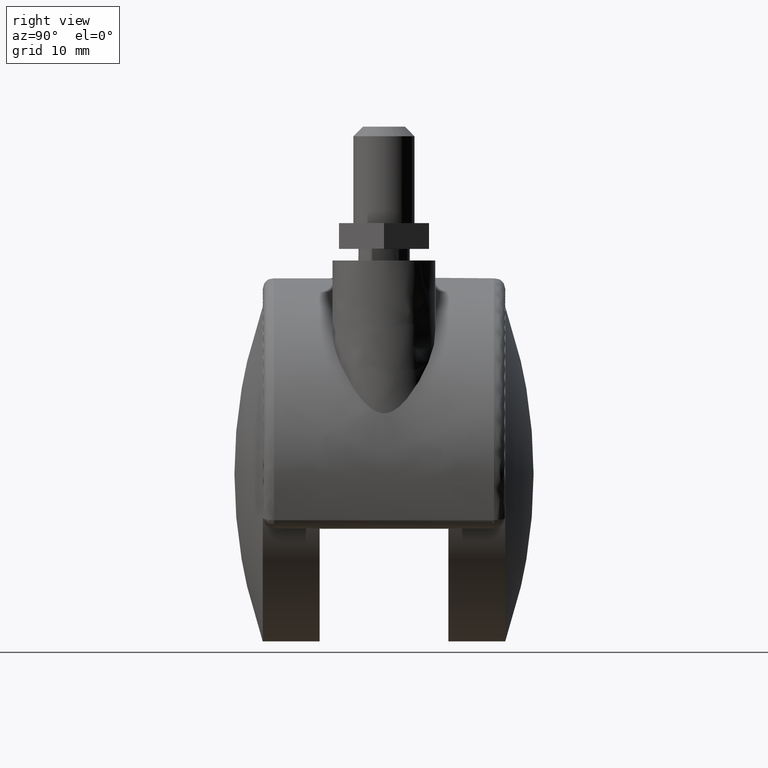
[diagram: clean part render]
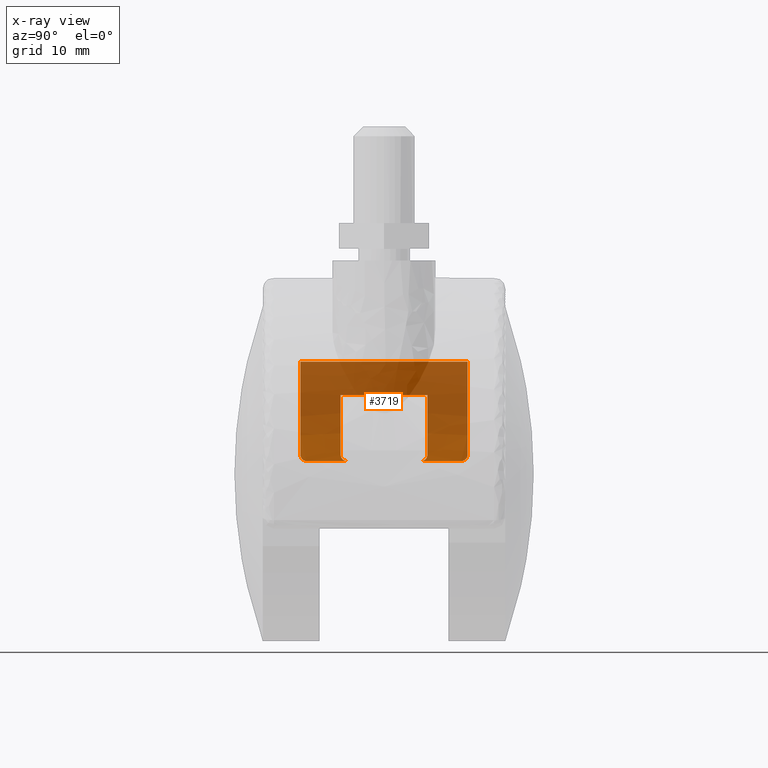
[diagram: x-ray — body ghosted, one internal face saturated and labeled with its STEP entity id]
A machine part, right view, then the same camera in x-ray: the body is ghosted and one INTERNAL B-rep face — a face not visible from any outside direction — is saturated and labeled: STEP entity #3719.
In plain terms, the highlighted face is a freeform B-spline surface patch.
Its self-contained STEP definition (entity closure, byte-faithful):
#3174=CARTESIAN_POINT('',(-18.894443627691199,-5.750000000000000,2.0));
#3175=VERTEX_POINT('',#3174);
#3181=CARTESIAN_POINT('',(-18.761663039293701,-6.750000000000000,3.0));
#3182=VERTEX_POINT('',#3181);
#3183=CARTESIAN_POINT('',(-18.761663039293701,-6.750000000000000,3.0));
#3184=CARTESIAN_POINT('',(-18.772136338605801,-6.750000000000002,2.934501162465546));
#3185=CARTESIAN_POINT('',(-18.782096038738811,-6.743626565541983,2.870015874243214));
#3186=CARTESIAN_POINT('',(-18.796322497222139,-6.724840603805475,2.774759676462990));
#3187=CARTESIAN_POINT('',(-18.800945463157159,-6.717029890141853,2.743254747255856));
#3188=CARTESIAN_POINT('',(-18.809959020361980,-6.698233365339325,2.680753358527176));
#3189=CARTESIAN_POINT('',(-18.814364442629969,-6.687186139035044,2.649645287974531));
#3190=CARTESIAN_POINT('',(-18.826974285729641,-6.649906527669389,2.559053999667226));
#3191=CARTESIAN_POINT('',(-18.834662939942682,-6.619448907145343,2.501694188412195));
#3192=CARTESIAN_POINT('',(-18.848777608183909,-6.547392918413935,2.393028322191455));
#3193=CARTESIAN_POINT('',(-18.855236073824489,-6.505338391770835,2.341420359804651));
#3194=CARTESIAN_POINT('',(-18.866507495339128,-6.413288647863860,2.248793371849185));
#3195=CARTESIAN_POINT('',(-18.871396859172890,-6.363029073026549,2.207203861786054));
#3196=CARTESIAN_POINT('',(-18.877735261573878,-6.281146204377138,2.152081195006593));
#3197=CARTESIAN_POINT('',(-18.879682838534499,-6.252683601060065,2.134905437988408));
#3198=CARTESIAN_POINT('',(-18.883176954277811,-6.194816740034788,2.103775992409507));
#3199=CARTESIAN_POINT('',(-18.886295042009259,-6.135720447052030,2.075653200648294));
#3200=CARTESIAN_POINT('',(-18.888712394857631,-6.074207286833745,2.053445260443463));
#3201=CARTESIAN_POINT('',(-18.890791298011361,-6.011471428285188,2.034231429376818));
#3202=CARTESIAN_POINT('',(-18.891663868494380,-5.979378023110510,2.026099523559267));
#3203=CARTESIAN_POINT('',(-18.893754899522719,-5.881986462887099,2.006538759888016));
#3204=CARTESIAN_POINT('',(-18.894443627691199,-5.816349673044193,2.0));
#3205=CARTESIAN_POINT('',(-18.894443627691199,-5.750000000000000,2.0));
#3206=B_SPLINE_CURVE_WITH_KNOTS('',3,(#3183,#3184,#3185,#3186,#3187,#3188,#3189,#3190,#3191,#3192,#3193,#3194,#3195,#3196,#3197,#3198,#3199,#3200,#3201,#3202,#3203,#3204,#3205),.UNSPECIFIED.,.F.,.U.,(4,2,2,2,2,2,2,2,1,2,2,4),(0.0,0.125000000000001,0.187500000000002,0.250000000000002,0.375000000000001,0.500000000000001,0.625000000000001,0.687500000000000,0.750000000000000,0.812499999999999,0.874999999999999,1.0),.UNSPECIFIED.);
#3207=EDGE_CURVE('',#3182,#3175,#3206,.T.);
#3261=CARTESIAN_POINT('',(-18.761663039293701,6.750000000000000,3.0));
#3262=VERTEX_POINT('',#3261);
#3268=CARTESIAN_POINT('',(-18.894443627691199,5.750000000000000,2.0));
#3269=VERTEX_POINT('',#3268);
#3270=CARTESIAN_POINT('',(-18.894443627691199,5.750000000000000,2.0));
#3271=CARTESIAN_POINT('',(-18.894443627691199,5.816340089798110,2.0));
#3272=CARTESIAN_POINT('',(-18.893755016630880,5.881560134999138,2.006536099276914));
#3273=CARTESIAN_POINT('',(-18.891702586896749,5.977779227215512,2.025738088890190));
#3274=CARTESIAN_POINT('',(-18.890846700358900,6.009581738512580,2.033716804918213));
#3275=CARTESIAN_POINT('',(-18.888771389098441,6.072633137494402,2.052902459797726));
#3276=CARTESIAN_POINT('',(-18.887546714464172,6.103944270127222,2.064156140006524));
#3277=CARTESIAN_POINT('',(-18.883379998415620,6.194975576713583,2.102047973050960));
#3278=CARTESIAN_POINT('',(-18.879932848899280,6.252514285096932,2.132952103104125));
#3279=CARTESIAN_POINT('',(-18.873642132730019,6.334139610276921,2.187685971274014));
#3280=CARTESIAN_POINT('',(-18.871345527367080,6.360676988030680,2.207433844952303));
#3281=CARTESIAN_POINT('',(-18.866390646821529,6.411566610929464,2.249388840250414));
#3282=CARTESIAN_POINT('',(-18.863749010214519,6.435776218268696,2.271456769980961));
#3283=CARTESIAN_POINT('',(-18.855309796693469,6.504814989394846,2.340825235629653));
#3284=CARTESIAN_POINT('',(-18.849003023049111,6.546087667040354,2.391260897304321));
#3285=CARTESIAN_POINT('',(-18.838349684066898,6.600702263039509,2.473326119073119));
#3286=CARTESIAN_POINT('',(-18.834611236002999,6.617590274520782,2.501652161592304));
#3287=CARTESIAN_POINT('',(-18.826873191060791,6.648215287438223,2.559236174464217));
#3288=CARTESIAN_POINT('',(-18.818839026218011,6.675875299145322,2.618023279598888));
#3289=CARTESIAN_POINT('',(-18.810183942900579,6.697697853473424,2.679173741165670));
#3290=CARTESIAN_POINT('',(-18.801198585906889,6.716565062033185,2.741518490617698));
#3291=CARTESIAN_POINT('',(-18.796518145788941,6.724545665215903,2.773437888537529));
#3292=CARTESIAN_POINT('',(-18.782149533327662,6.743627425185223,2.869680716371149));
#3293=CARTESIAN_POINT('',(-18.772135243103548,6.750000000000000,2.934508013613643));
#3294=CARTESIAN_POINT('',(-18.761663039293701,6.750000000000000,3.0));
#3295=B_SPLINE_CURVE_WITH_KNOTS('',3,(#3270,#3271,#3272,#3273,#3274,#3275,#3276,#3277,#3278,#3279,#3280,#3281,#3282,#3283,#3284,#3285,#3286,#3287,#3288,#3289,#3290,#3291,#3292,#3293,#3294),.UNSPECIFIED.,.F.,.U.,(4,2,2,2,2,2,2,2,2,1,2,2,4),(0.0,0.124999999999998,0.187499999999998,0.249999999999998,0.375000000000000,0.437500000000000,0.500000000000000,0.625000000000000,0.687500000000001,0.750000000000001,0.812500000000001,0.875000000000001,1.0),.UNSPECIFIED.);
#3296=EDGE_CURVE('',#3269,#3262,#3295,.T.);
#3320=CARTESIAN_POINT('',(-18.894443627691199,-12.0,2.0));
#3321=VERTEX_POINT('',#3320);
#3322=CARTESIAN_POINT('',(-18.761663039293701,-13.0,3.0));
#3323=VERTEX_POINT('',#3322);
#3324=CARTESIAN_POINT('',(-18.894443627691199,-12.0,2.0));
#3325=CARTESIAN_POINT('',(-18.894443627691199,-12.066340089798119,2.0));
#3326=CARTESIAN_POINT('',(-18.893755016630891,-12.131560134999139,2.006536099276914));
#3327=CARTESIAN_POINT('',(-18.891702586896749,-12.227779227215510,2.025738088890190));
#3328=CARTESIAN_POINT('',(-18.890846700358900,-12.259581738512580,2.033716804918212));
#3329=CARTESIAN_POINT('',(-18.888771389098441,-12.322633137494400,2.052902459797726));
#3330=CARTESIAN_POINT('',(-18.887546714464172,-12.353944270127220,2.064156140006525));
#3331=CARTESIAN_POINT('',(-18.883379998415631,-12.444975576713590,2.102047973050961));
#3332=CARTESIAN_POINT('',(-18.879932848899291,-12.502514285096931,2.132952103104124));
#3333=CARTESIAN_POINT('',(-18.873642132730019,-12.584139610276919,2.187685971274013));
#3334=CARTESIAN_POINT('',(-18.871345527367069,-12.610676988030679,2.207433844952306));
#3335=CARTESIAN_POINT('',(-18.866390646821529,-12.661566610929460,2.249388840250417));
#3336=CARTESIAN_POINT('',(-18.863749010214509,-12.685776218268691,2.271456769980962));
#3337=CARTESIAN_POINT('',(-18.855309796693469,-12.754814989394839,2.340825235629652));
#3338=CARTESIAN_POINT('',(-18.849003023049111,-12.796087667040361,2.391260897304321));
#3339=CARTESIAN_POINT('',(-18.838349684066909,-12.850702263039510,2.473326119073117));
#3340=CARTESIAN_POINT('',(-18.834611236002988,-12.867590274520790,2.501652161592307));
#3341=CARTESIAN_POINT('',(-18.826873191060791,-12.898215287438219,2.559236174464218));
#3342=CARTESIAN_POINT('',(-18.818839026218011,-12.925875299145320,2.618023279598888));
#3343=CARTESIAN_POINT('',(-18.810183942900569,-12.947697853473430,2.679173741165665));
#3344=CARTESIAN_POINT('',(-18.801198585906899,-12.966565062033190,2.741518490617692));
#3345=CARTESIAN_POINT('',(-18.796518145788941,-12.974545665215910,2.773437888537535));
#3346=CARTESIAN_POINT('',(-18.782149533327651,-12.993627425185220,2.869680716371151));
#3347=CARTESIAN_POINT('',(-18.772135243103541,-13.0,2.934508013613642));
#3348=CARTESIAN_POINT('',(-18.761663039293701,-13.0,3.0));
#3349=B_SPLINE_CURVE_WITH_KNOTS('',3,(#3324,#3325,#3326,#3327,#3328,#3329,#3330,#3331,#3332,#3333,#3334,#3335,#3336,#3337,#3338,#3339,#3340,#3341,#3342,#3343,#3344,#3345,#3346,#3347,#3348),.UNSPECIFIED.,.F.,.U.,(4,2,2,2,2,2,2,2,2,1,2,2,4),(0.0,0.125000000000002,0.187500000000002,0.250000000000001,0.375000000000003,0.437500000000004,0.500000000000005,0.625000000000004,0.687500000000003,0.750000000000003,0.812500000000002,0.875000000000002,1.0),.UNSPECIFIED.);
#3350=EDGE_CURVE('',#3321,#3323,#3349,.T.);
#3409=CARTESIAN_POINT('',(-18.761663039293701,13.0,3.0));
#3410=VERTEX_POINT('',#3409);
#3411=CARTESIAN_POINT('',(-18.894443627691199,12.0,2.0));
#3412=VERTEX_POINT('',#3411);
#3413=CARTESIAN_POINT('',(-18.761663039293701,13.0,3.0));
#3414=CARTESIAN_POINT('',(-18.772136338605801,13.0,2.934501162465546));
#3415=CARTESIAN_POINT('',(-18.782096038738811,12.993626565541989,2.870015874243215));
#3416=CARTESIAN_POINT('',(-18.796322497222128,12.974840603805470,2.774759676462991));
#3417=CARTESIAN_POINT('',(-18.800945463157159,12.967029890141850,2.743254747255855));
#3418=CARTESIAN_POINT('',(-18.809959020361969,12.948233365339330,2.680753358527177));
#3419=CARTESIAN_POINT('',(-18.814364442629969,12.937186139035051,2.649645287974530));
#3420=CARTESIAN_POINT('',(-18.826974285729630,12.899906527669390,2.559053999667225));
#3421=CARTESIAN_POINT('',(-18.834662939942682,12.869448907145340,2.501694188412195));
#3422=CARTESIAN_POINT('',(-18.848777608183902,12.797392918413941,2.393028322191453));
#3423=CARTESIAN_POINT('',(-18.855236073824489,12.755338391770840,2.341420359804652));
#3424=CARTESIAN_POINT('',(-18.866507495339128,12.663288647863860,2.248793371849185));
#3425=CARTESIAN_POINT('',(-18.871396859172879,12.613029073026549,2.207203861786054));
#3426=CARTESIAN_POINT('',(-18.877735261573889,12.531146204377141,2.152081195006593));
#3427=CARTESIAN_POINT('',(-18.879682838534510,12.502683601060070,2.134905437988408));
#3428=CARTESIAN_POINT('',(-18.883176954277801,12.444816740034790,2.103775992409506));
#3429=CARTESIAN_POINT('',(-18.886295042009259,12.385720447052030,2.075653200648296));
#3430=CARTESIAN_POINT('',(-18.888712394857642,12.324207286833740,2.053445260443463));
#3431=CARTESIAN_POINT('',(-18.890791298011351,12.261471428285191,2.034231429376817));
#3432=CARTESIAN_POINT('',(-18.891663868494369,12.229378023110510,2.026099523559268));
#3433=CARTESIAN_POINT('',(-18.893754899522719,12.131986462887101,2.006538759888016));
#3434=CARTESIAN_POINT('',(-18.894443627691199,12.066349673044190,2.0));
#3435=CARTESIAN_POINT('',(-18.894443627691199,12.0,2.0));
#3436=B_SPLINE_CURVE_WITH_KNOTS('',3,(#3413,#3414,#3415,#3416,#3417,#3418,#3419,#3420,#3421,#3422,#3423,#3424,#3425,#3426,#3427,#3428,#3429,#3430,#3431,#3432,#3433,#3434,#3435),.UNSPECIFIED.,.F.,.U.,(4,2,2,2,2,2,2,2,1,2,2,4),(0.0,0.125000000000002,0.187500000000003,0.250000000000003,0.375000000000003,0.500000000000002,0.625000000000002,0.687500000000002,0.750000000000001,0.812500000000001,0.875000000000001,1.0),.UNSPECIFIED.);
#3437=EDGE_CURVE('',#3410,#3412,#3436,.T.);
#3489=CARTESIAN_POINT('',(-7.500000000000000,-13.0,17.457090250096101));
#3490=VERTEX_POINT('',#3489);
#3491=CARTESIAN_POINT('',(-7.499999999999990,-13.0,17.457090250096091));
#3492=CARTESIAN_POINT('',(-17.110157927626016,-12.999999999999996,13.328327470926844));
#3493=CARTESIAN_POINT('',(-18.761663039293719,-13.0,3.000000000000006));
#3501=(BOUNDED_CURVE()B_SPLINE_CURVE(2,(#3491,#3492,#3493),.UNSPECIFIED.,.F.,.U.)CURVE()GEOMETRIC_REPRESENTATION_ITEM()QUASI_UNIFORM_CURVE()RATIONAL_B_SPLINE_CURVE((1.0,0.876030255002670,1.0))REPRESENTATION_ITEM(''));
#3502=EDGE_CURVE('',#3490,#3323,#3501,.T.);
#3549=CARTESIAN_POINT('',(-7.500000000000000,13.0,17.457090250096101));
#3550=VERTEX_POINT('',#3549);
#3551=CARTESIAN_POINT('',(-7.499999999999990,13.0,17.457090250096091));
#3552=CARTESIAN_POINT('',(-17.110157927626016,12.999999999999996,13.328327470926844));
#3553=CARTESIAN_POINT('',(-18.761663039293719,13.0,3.000000000000006));
#3561=(BOUNDED_CURVE()B_SPLINE_CURVE(2,(#3551,#3552,#3553),.UNSPECIFIED.,.F.,.U.)CURVE()GEOMETRIC_REPRESENTATION_ITEM()QUASI_UNIFORM_CURVE()RATIONAL_B_SPLINE_CURVE((1.0,0.876030255002670,1.0))REPRESENTATION_ITEM(''));
#3562=EDGE_CURVE('',#3550,#3410,#3561,.T.);
#3584=CARTESIAN_POINT('',(-7.500000000000000,-6.900000000000000,17.457090250096101));
#3585=VERTEX_POINT('',#3584);
#3591=CARTESIAN_POINT('',(-7.500000000000000,-6.900000000000000,17.457090250096101));
#3592=CARTESIAN_POINT('',(-7.500000000000000,-13.0,17.457090250096101));
#3593=QUASI_UNIFORM_CURVE('',1,(#3591,#3592),.UNSPECIFIED.,.F.,.U.);
#3594=EDGE_CURVE('',#3585,#3490,#3593,.T.);
#3639=CARTESIAN_POINT('',(-18.947742766867890,13.650000000000000,1.408205965264028));
#3640=CARTESIAN_POINT('',(-18.947742766867890,-13.666250000000000,1.408205965264028));
#3641=CARTESIAN_POINT('',(-18.043838293759556,13.650000000000007,13.570453438109285));
#3642=CARTESIAN_POINT('',(-18.043838293759556,-13.666249999999998,13.570453438109285));
#3643=CARTESIAN_POINT('',(-6.609835758528075,13.650000000000007,17.813199354559629));
#3644=CARTESIAN_POINT('',(-6.609835758528075,-13.666250000000002,17.813199354559629));
#3652=(BOUNDED_SURFACE()B_SPLINE_SURFACE(1,2,((#3639,#3641,#3643),(#3640,#3642,#3644)),.UNSPECIFIED.,.F.,.F.,.U.)B_SPLINE_SURFACE_WITH_KNOTS((2,2),(3,3),(0.0,27.316250000000011),(0.0,22.292799593734429),.UNSPECIFIED.)GEOMETRIC_REPRESENTATION_ITEM()RATIONAL_B_SPLINE_SURFACE(((1.0,0.838092953877438,0.991798842308037),(1.0,0.838092953877438,0.991798842308037)))REPRESENTATION_ITEM('')SURFACE());
#3653=ORIENTED_EDGE('',*,*,#3562,.T.);
#3654=ORIENTED_EDGE('',*,*,#3437,.T.);
#3655=CARTESIAN_POINT('',(-18.894443627691199,12.0,2.0));
#3656=CARTESIAN_POINT('',(-18.894443627691199,5.750000000000000,2.0));
#3657=QUASI_UNIFORM_CURVE('',1,(#3655,#3656),.UNSPECIFIED.,.F.,.U.);
#3658=EDGE_CURVE('',#3412,#3269,#3657,.T.);
#3659=ORIENTED_EDGE('',*,*,#3658,.T.);
#3660=ORIENTED_EDGE('',*,*,#3296,.T.);
#3661=CARTESIAN_POINT('',(-14.500000000000000,6.750000000000000,12.278029157808660));
#3662=VERTEX_POINT('',#3661);
#3663=CARTESIAN_POINT('',(-14.500000000000011,6.750000000000000,12.278029157808660));
#3664=CARTESIAN_POINT('',(-17.924841156980008,6.750000000000000,8.233390059959081));
#3665=CARTESIAN_POINT('',(-18.761663039293719,6.750000000000000,3.000000000000006));
#3673=(BOUNDED_CURVE()B_SPLINE_CURVE(2,(#3663,#3664,#3665),.UNSPECIFIED.,.F.,.U.)CURVE()GEOMETRIC_REPRESENTATION_ITEM()QUASI_UNIFORM_CURVE()RATIONAL_B_SPLINE_CURVE((1.0,0.963228500103487,1.0))REPRESENTATION_ITEM(''));
#3674=EDGE_CURVE('',#3662,#3262,#3673,.T.);
#3675=ORIENTED_EDGE('',*,*,#3674,.F.);
#3676=CARTESIAN_POINT('',(-14.500000000000000,-6.750000000000000,12.278029157808660));
#3677=VERTEX_POINT('',#3676);
#3678=CARTESIAN_POINT('',(-14.500000000000000,6.750000000000000,12.278029157808660));
#3679=CARTESIAN_POINT('',(-14.500000000000000,-6.750000000000000,12.278029157808660));
#3680=QUASI_UNIFORM_CURVE('',1,(#3678,#3679),.UNSPECIFIED.,.F.,.U.);
#3681=EDGE_CURVE('',#3662,#3677,#3680,.T.);
#3682=ORIENTED_EDGE('',*,*,#3681,.T.);
#3683=CARTESIAN_POINT('',(-14.500000000000011,-6.750000000000000,12.278029157808660));
#3684=CARTESIAN_POINT('',(-17.924841156980008,-6.750000000000000,8.233390059959081));
#3685=CARTESIAN_POINT('',(-18.761663039293719,-6.750000000000000,3.000000000000006));
#3693=(BOUNDED_CURVE()B_SPLINE_CURVE(2,(#3683,#3684,#3685),.UNSPECIFIED.,.F.,.U.)CURVE()GEOMETRIC_REPRESENTATION_ITEM()QUASI_UNIFORM_CURVE()RATIONAL_B_SPLINE_CURVE((1.0,0.963228500103487,1.0))REPRESENTATION_ITEM(''));
#3694=EDGE_CURVE('',#3677,#3182,#3693,.T.);
#3695=ORIENTED_EDGE('',*,*,#3694,.T.);
#3696=ORIENTED_EDGE('',*,*,#3207,.T.);
#3697=CARTESIAN_POINT('',(-18.894443627691199,-5.750000000000000,2.0));
#3698=CARTESIAN_POINT('',(-18.894443627691199,-12.0,2.0));
#3699=QUASI_UNIFORM_CURVE('',1,(#3697,#3698),.UNSPECIFIED.,.F.,.U.);
#3700=EDGE_CURVE('',#3175,#3321,#3699,.T.);
#3701=ORIENTED_EDGE('',*,*,#3700,.T.);
#3702=ORIENTED_EDGE('',*,*,#3350,.T.);
#3703=ORIENTED_EDGE('',*,*,#3502,.F.);
#3704=ORIENTED_EDGE('',*,*,#3594,.F.);
#3705=CARTESIAN_POINT('',(-7.500000000000000,6.900000000000000,17.457090250096101));
#3706=VERTEX_POINT('',#3705);
#3707=CARTESIAN_POINT('',(-7.500000000000000,6.900000000000000,17.457090250096101));
#3708=CARTESIAN_POINT('',(-7.500000000000000,-6.900000000000000,17.457090250096101));
#3709=QUASI_UNIFORM_CURVE('',1,(#3707,#3708),.UNSPECIFIED.,.F.,.U.);
#3710=EDGE_CURVE('',#3706,#3585,#3709,.T.);
#3711=ORIENTED_EDGE('',*,*,#3710,.F.);
#3712=CARTESIAN_POINT('',(-7.500000000000000,13.0,17.457090250096101));
#3713=CARTESIAN_POINT('',(-7.500000000000000,6.900000000000000,17.457090250096101));
#3714=QUASI_UNIFORM_CURVE('',1,(#3712,#3713),.UNSPECIFIED.,.F.,.U.);
#3715=EDGE_CURVE('',#3550,#3706,#3714,.T.);
#3716=ORIENTED_EDGE('',*,*,#3715,.F.);
#3717=EDGE_LOOP('',(#3653,#3654,#3659,#3660,#3675,#3682,#3695,#3696,#3701,#3702,#3703,#3704,#3711,#3716));
#3718=FACE_OUTER_BOUND('',#3717,.T.);
#3719=ADVANCED_FACE('',(#3718),#3652,.T.);